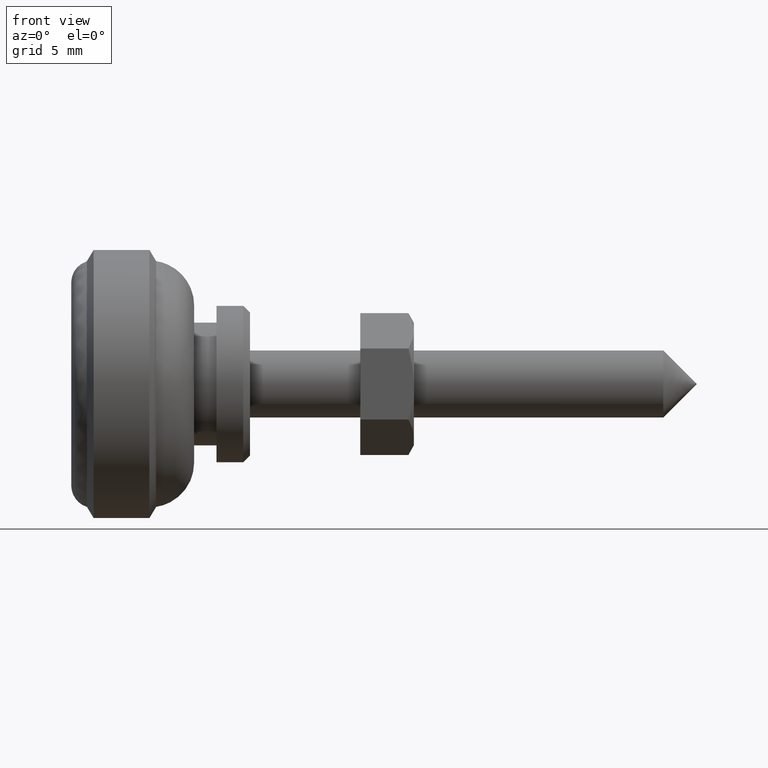
[diagram: clean part render]
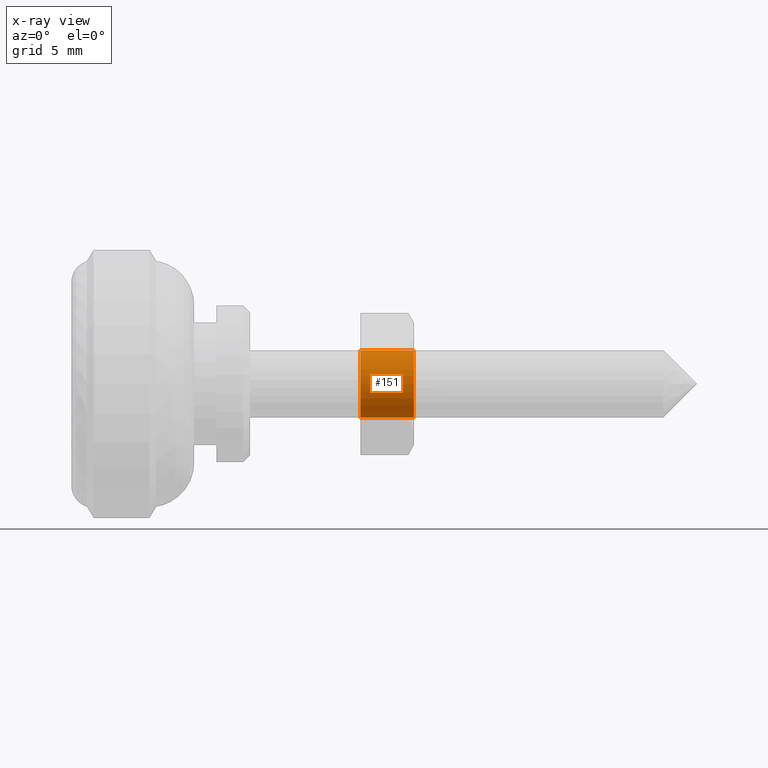
[diagram: x-ray — body ghosted, one internal face saturated and labeled with its STEP entity id]
A machine part, front view, then the same camera in x-ray: the body is ghosted and one INTERNAL B-rep face — a face not visible from any outside direction — is saturated and labeled: STEP entity #151.
In plain terms, the highlighted cylindrical surface (edge-blend (fillet) strip) has radius 1.5 mm, axis along (-1, 0, 0).
Its self-contained STEP definition (entity closure, byte-faithful):
#151=ADVANCED_FACE('',(#548),#547,.F.);
#547=CYLINDRICAL_SURFACE('',#904,1.50000000000E+00);
#548=FACE_OUTER_BOUND('',#905,.T.);
#901=CARTESIAN_POINT('',(0.00000000000E+00,0.00000000000E+00,0.00000000000E+00));
#902=DIRECTION('',(-0.00000000000E+00,0.00000000000E+00,-1.00000000000E+00));
#903=DIRECTION('',(-1.00000000000E+00,-0.00000000000E+00,-0.00000000000E+00));
#904=AXIS2_PLACEMENT_3D('',#901,#902,#903);
#905=EDGE_LOOP('',(#1068,#1069,#1070,#1071,#1072,#1073));
#1068=ORIENTED_EDGE('',*,*,#1153,.F.);
#1069=ORIENTED_EDGE('',*,*,#1155,.F.);
#1070=ORIENTED_EDGE('',*,*,#1156,.F.);
#1071=ORIENTED_EDGE('',*,*,#1134,.T.);
#1072=ORIENTED_EDGE('',*,*,#1136,.T.);
#1073=ORIENTED_EDGE('',*,*,#1157,.T.);
#1134=EDGE_CURVE('',#1555,#1556,#1557,.T.);
#1136=EDGE_CURVE('',#1556,#1563,#1570,.T.);
#1153=EDGE_CURVE('',#1680,#1681,#1682,.T.);
#1155=EDGE_CURVE('',#1688,#1680,#1695,.T.);
#1156=EDGE_CURVE('',#1555,#1688,#1701,.T.);
#1157=EDGE_CURVE('',#1563,#1681,#1707,.T.);
#1555=VERTEX_POINT('',#1969);
#1556=VERTEX_POINT('',#1970);
#1557=CIRCLE('',#1974,1.50000000000E+00);
#1563=VERTEX_POINT('',#1975);
#1570=CIRCLE('',#1983,1.50000000000E+00);
#1680=VERTEX_POINT('',#2048);
#1681=VERTEX_POINT('',#2049);
#1682=CIRCLE('',#2053,1.50000000000E+00);
#1688=VERTEX_POINT('',#2054);
#1695=CIRCLE('',#2062,1.50000000000E+00);
#1701=(BOUNDED_CURVE() B_SPLINE_CURVE(1,(#2063,#2064),.UNSPECIFIED.,.F.,.F.) B_SPLINE_CURVE_WITH_KNOTS((2,2),(8.33333233997E-02,9.16666663280E-01),.UNSPECIFIED.) CURVE() GEOMETRIC_REPRESENTATION_ITEM() RATIONAL_B_SPLINE_CURVE((1.00000000000E+00,1.00000000000E+00)) REPRESENTATION_ITEM('') );
#1707=(BOUNDED_CURVE() B_SPLINE_CURVE(1,(#2065,#2066),.UNSPECIFIED.,.F.,.F.) B_SPLINE_CURVE_WITH_KNOTS((2,2),(8.33333333333E-02,9.16666666667E-01),.UNSPECIFIED.) CURVE() GEOMETRIC_REPRESENTATION_ITEM() RATIONAL_B_SPLINE_CURVE((7.50000000000E-01,7.50000000000E-01)) REPRESENTATION_ITEM('') );
#1969=CARTESIAN_POINT('',(-1.49999999998E+00,-8.18172202416E-06,2.40000000000E+00));
#1970=CARTESIAN_POINT('',(0.00000000000E+00,-1.50000000000E+00,2.40000000000E+00));
#1971=CARTESIAN_POINT('',(0.00000000000E+00,0.00000000000E+00,2.40000000000E+00));
#1972=DIRECTION('',(0.00000000000E+00,0.00000000000E+00,1.00000000000E+00));
#1973=DIRECTION('',(-1.22460635382E-16,-1.00000000000E+00,0.00000000000E+00));
#1974=AXIS2_PLACEMENT_3D('',#1971,#1972,#1973);
#1975=CARTESIAN_POINT('',(1.49999999192E+00,1.55697070634E-04,2.40000000000E+00));
#1980=CARTESIAN_POINT('',(0.00000000000E+00,0.00000000000E+00,2.40000000000E+00));
#1981=DIRECTION('',(0.00000000000E+00,0.00000000000E+00,1.00000000000E+00));
#1982=DIRECTION('',(-1.22460635382E-16,-1.00000000000E+00,0.00000000000E+00));
#1983=AXIS2_PLACEMENT_3D('',#1980,#1981,#1982);
#2048=CARTESIAN_POINT('',(0.00000000000E+00,-1.50000000000E+00,0.00000000000E+00));
#2049=CARTESIAN_POINT('',(1.49999999192E+00,1.55697070634E-04,0.00000000000E+00));
#2050=CARTESIAN_POINT('',(0.00000000000E+00,0.00000000000E+00,0.00000000000E+00));
#2051=DIRECTION('',(0.00000000000E+00,0.00000000000E+00,1.00000000000E+00));
#2052=DIRECTION('',(-1.22460635382E-16,-1.00000000000E+00,0.00000000000E+00));
#2053=AXIS2_PLACEMENT_3D('',#2050,#2051,#2052);
#2054=CARTESIAN_POINT('',(-1.49999999998E+00,-8.18172202416E-06,0.00000000000E+00));
#2059=CARTESIAN_POINT('',(0.00000000000E+00,0.00000000000E+00,0.00000000000E+00));
#2060=DIRECTION('',(0.00000000000E+00,0.00000000000E+00,1.00000000000E+00));
#2061=DIRECTION('',(-1.22460635382E-16,-1.00000000000E+00,0.00000000000E+00));
#2062=AXIS2_PLACEMENT_3D('',#2059,#2060,#2061);
#2063=CARTESIAN_POINT('',(-1.50000000000E+00,0.00000000000E+00,2.40000002861E+00));
#2064=CARTESIAN_POINT('',(-1.50000000000E+00,0.00000000000E+00,9.75466524222E-09));
#2065=CARTESIAN_POINT('',(1.50000000000E+00,-7.40148683083E-17,2.40000000000E+00));
#2066=CARTESIAN_POINT('',(1.50000000000E+00,-7.40148683083E-17,-1.11022302463E-16));